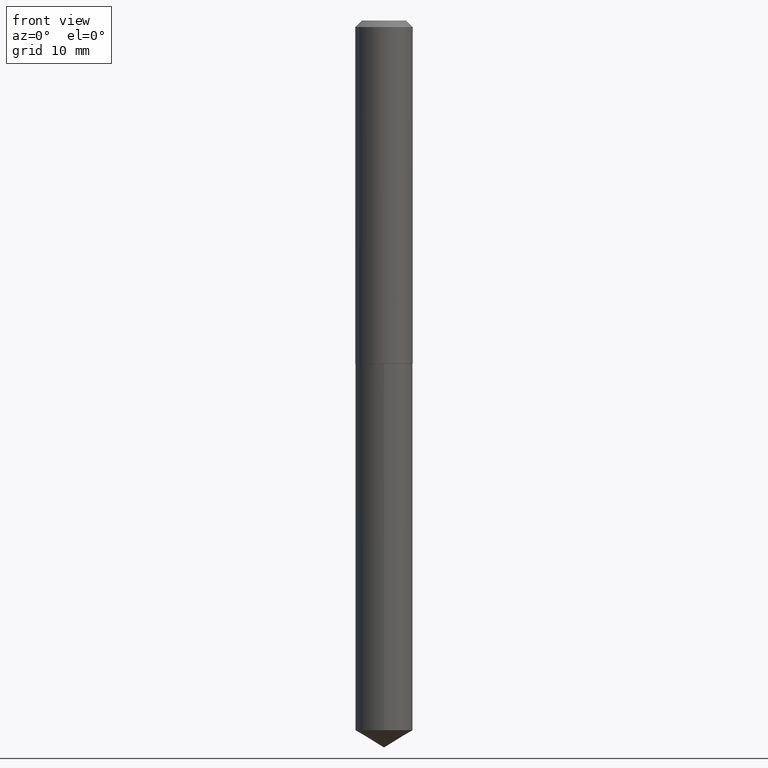
[diagram: clean part render]
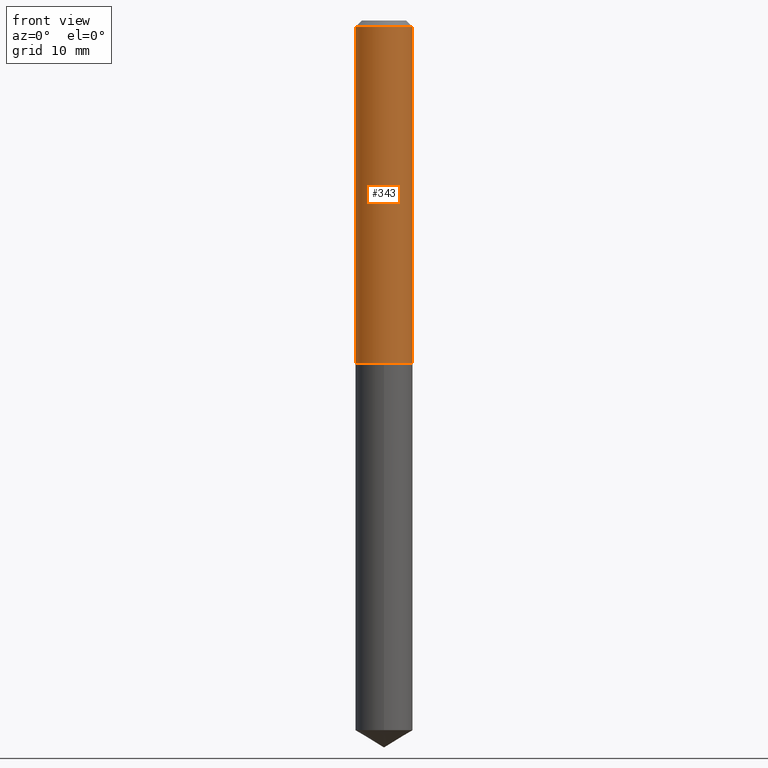
[diagram: same view with one face highlighted and labeled with its STEP entity id]
A machine part, front view. The second image highlights one B-rep face of the part: STEP entity #343.
In plain terms, the highlighted cylindrical surface (edge-blend (fillet) strip) has radius 3.5179 mm, axis along (-0, 0, 1).
Its self-contained STEP definition (entity closure, byte-faithful):
#32 = AXIS2_PLACEMENT_3D ( 'NONE', #256, #140, #43 ) ;
#43 = DIRECTION ( 'NONE',  ( 1.000000000000000000, -6.982962677686267499E-15, 0.000000000000000000 ) ) ;
#49 = AXIS2_PLACEMENT_3D ( 'NONE', #125, #235, #150 ) ;
#57 = EDGE_CURVE ( 'NONE', #354, #83, #373, .T. ) ;
#61 = FACE_OUTER_BOUND ( 'NONE', #105, .T. ) ;
#70 = CARTESIAN_POINT ( 'NONE',  ( 0.000000000000000000, 0.000000000000000000, 0.000000000000000000 ) ) ;
#83 = VERTEX_POINT ( 'NONE', #143 ) ;
#91 = EDGE_CURVE ( 'NONE', #175, #354, #261, .T. ) ;
#95 = CYLINDRICAL_SURFACE ( 'NONE', #237, 0.1385000000000000953 ) ;
#104 = VERTEX_POINT ( 'NONE', #264 ) ;
#105 = EDGE_LOOP ( 'NONE', ( #377, #254, #345, #282 ) ) ;
#107 = VECTOR ( 'NONE', #131, 39.37007874015748143 ) ;
#110 = DIRECTION ( 'NONE',  ( -2.445468806185136877E-29, 3.491481338843145188E-15, 1.000000000000000000 ) ) ;
#125 = CARTESIAN_POINT ( 'NONE',  ( 4.038691733414753677E-29, -5.766181431099455846E-15, -1.651500000000000190 ) ) ;
#131 = DIRECTION ( 'NONE',  ( -2.445468806185136877E-29, 3.491481338843145188E-15, 1.000000000000000000 ) ) ;
#140 = DIRECTION ( 'NONE',  ( -2.445468806185136597E-29, 3.491481338843145583E-15, 1.000000000000000000 ) ) ;
#143 = CARTESIAN_POINT ( 'NONE',  ( 0.1385000000000000120, -1.076249122698396985E-15, -0.03125000000000021511 ) ) ;
#150 = DIRECTION ( 'NONE',  ( 1.000000000000000000, -6.982962677686269866E-15, 0.000000000000000000 ) ) ;
#175 = VERTEX_POINT ( 'NONE', #241 ) ;
#186 = DIRECTION ( 'NONE',  ( -2.445468806185136597E-29, 3.491481338843145583E-15, 1.000000000000000000 ) ) ;
#204 = EDGE_CURVE ( 'NONE', #175, #104, #259, .T. ) ;
#235 = DIRECTION ( 'NONE',  ( -2.445468806185136597E-29, 3.491481338843145583E-15, 1.000000000000000000 ) ) ;
#237 = AXIS2_PLACEMENT_3D ( 'NONE', #70, #186, #297 ) ;
#241 = CARTESIAN_POINT ( 'NONE',  ( -0.1385000000000002063, -4.782079742071715820E-15, -1.651500000000000190 ) ) ;
#242 = LINE ( 'NONE', #247, #107 ) ;
#247 = CARTESIAN_POINT ( 'NONE',  ( 0.1385000000000000953, -9.671403308595486731E-16, 6.753504834477375725E-30 ) ) ;
#254 = ORIENTED_EDGE ( 'NONE', *, *, #204, .T. ) ;
#256 = CARTESIAN_POINT ( 'NONE',  ( 7.642090019328604414E-31, -1.091087918388490513E-16, -0.03125000000000021511 ) ) ;
#257 = VECTOR ( 'NONE', #110, 39.37007874015748143 ) ;
#259 = CIRCLE ( 'NONE', #49, 0.1385000000000002063 ) ;
#261 = LINE ( 'NONE', #375, #257 ) ;
#264 = CARTESIAN_POINT ( 'NONE',  ( 0.1385000000000002063, -6.733321761959005111E-15, -1.651500000000000190 ) ) ;
#282 = ORIENTED_EDGE ( 'NONE', *, *, #57, .F. ) ;
#297 = DIRECTION ( 'NONE',  ( 1.000000000000000000, -6.982962677686267499E-15, 4.876176775795935793E-29 ) ) ;
#340 = EDGE_CURVE ( 'NONE', #104, #83, #242, .T. ) ;
#343 = ADVANCED_FACE ( 'NONE', ( #61 ), #95, .T. ) ;
#345 = ORIENTED_EDGE ( 'NONE', *, *, #340, .T. ) ;
#354 = VERTEX_POINT ( 'NONE', #361 ) ;
#361 = CARTESIAN_POINT ( 'NONE',  ( -0.1385000000000000120, -1.953543422441412053E-15, -0.03125000000000021511 ) ) ;
#373 = CIRCLE ( 'NONE', #32, 0.1385000000000000120 ) ;
#375 = CARTESIAN_POINT ( 'NONE',  ( -0.1385000000000000953, 9.841016890277394343E-16, -6.812725100003049365E-30 ) ) ;
#377 = ORIENTED_EDGE ( 'NONE', *, *, #91, .F. ) ;